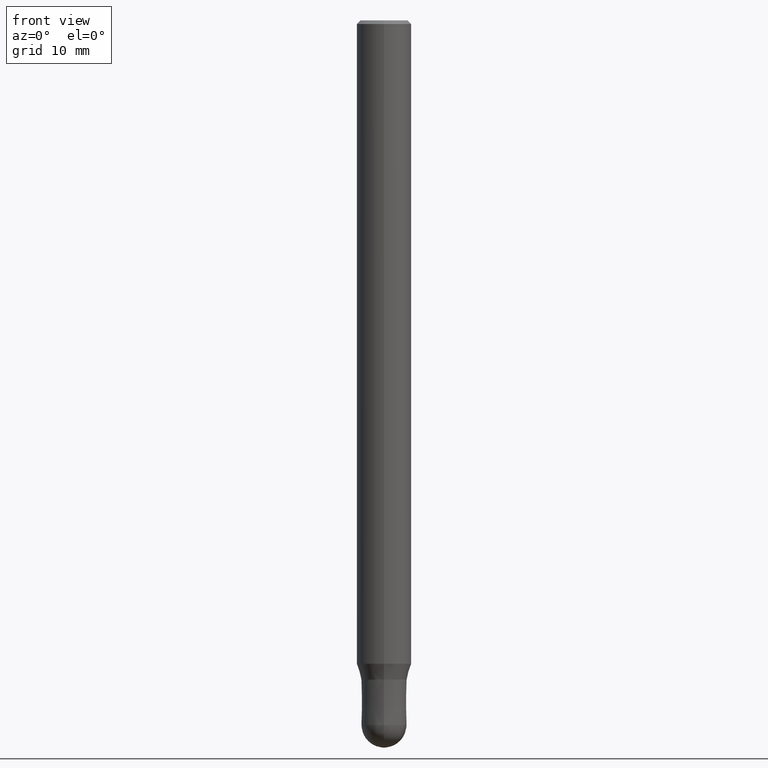
[diagram: clean part render]
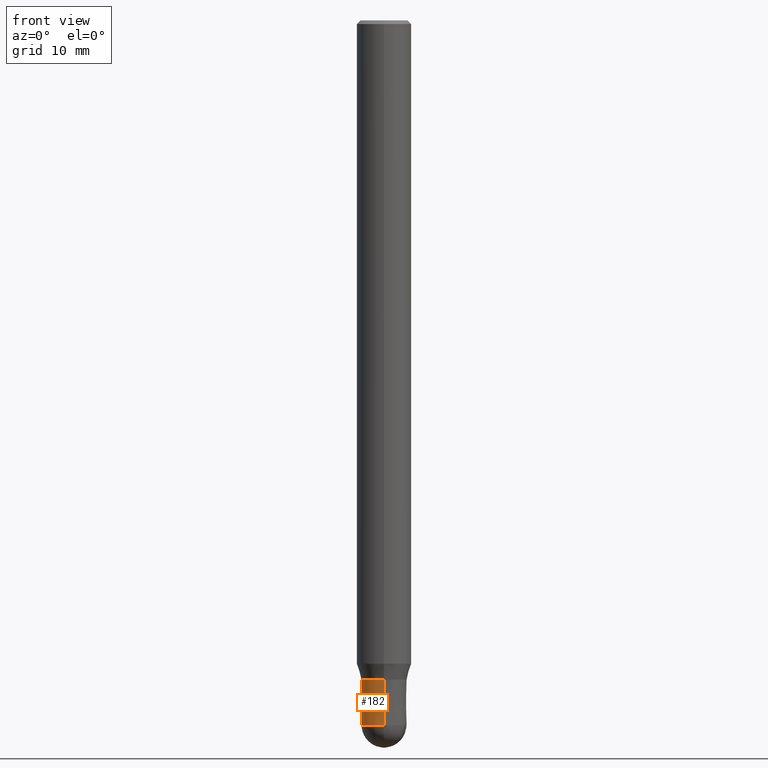
[diagram: same view with one face highlighted and labeled with its STEP entity id]
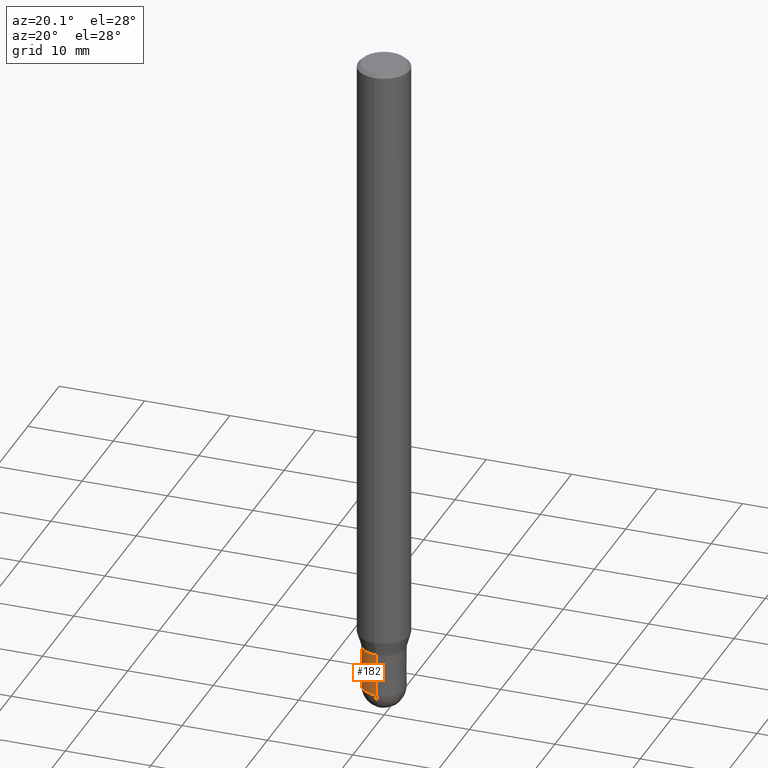
[diagram: same view with one face highlighted and labeled with its STEP entity id]
A machine part, front view. The second image highlights one B-rep face of the part: STEP entity #182.
A second angle (auxiliary view) of the same face is appended — the face is thin or edge-on in the first view.
In plain terms, the highlighted conical surface has half-angle 0.001 deg.
Its self-contained STEP definition (entity closure, byte-faithful):
#92=VERTEX_POINT('',#218);
#102=VERTEX_POINT('',#230);
#120=EDGE_CURVE('',#92,#154,#251,.T.);
#154=VERTEX_POINT('',#290);
#164=EDGE_CURVE('',#92,#180,#302,.T.);
#170=EDGE_CURVE('',#180,#102,#308,.T.);
#180=VERTEX_POINT('',#319);
#182=ADVANCED_FACE('',(#321),#322,.T.);
#184=EDGE_CURVE('',#102,#154,#324,.T.);
#218=CARTESIAN_POINT('',(3.06151588455594E-016,-2.5,-77.5));
#230=CARTESIAN_POINT('',(0.0,2.4999,-72.5));
#251=CIRCLE('',#394,2.5);
#290=CARTESIAN_POINT('',(0.0,2.5,-77.5));
#302=LINE('',#456,#457);
#308=CIRCLE('',#463,2.4999);
#319=CARTESIAN_POINT('',(3.06139342392056E-016,-2.4999,-72.5));
#321=FACE_OUTER_BOUND('',#479,.T.);
#322=CONICAL_SURFACE('',#480,2.49995,1.99999999974644E-005);
#324=LINE('',#483,#484);
#394=AXIS2_PLACEMENT_3D('',#555,#556,#557);
#456=CARTESIAN_POINT('',(3.06145465423825E-016,-2.49995,-75.0));
#457=VECTOR('',#621,1.0);
#463=AXIS2_PLACEMENT_3D('',#623,#624,#625);
#479=EDGE_LOOP('',(#639,#640,#641,#642));
#480=AXIS2_PLACEMENT_3D('',#643,#644,#645);
#483=CARTESIAN_POINT('',(-3.06145465423825E-016,2.49995,-75.0));
#484=VECTOR('',#646,1.0);
#555=CARTESIAN_POINT('',(0.0,0.0,-77.5));
#556=DIRECTION('',(0.0,0.0,-1.0));
#557=DIRECTION('',(0.0,1.0,0.0));
#621=DIRECTION('',(-2.44921270717096E-021,1.9999999996131E-005,0.9999999998));
#623=CARTESIAN_POINT('',(0.0,0.0,-72.5));
#624=DIRECTION('',(0.0,0.0,-1.0));
#625=DIRECTION('',(0.0,1.0,0.0));
#639=ORIENTED_EDGE('',*,*,#184,.T.);
#640=ORIENTED_EDGE('',*,*,#120,.F.);
#641=ORIENTED_EDGE('',*,*,#164,.T.);
#642=ORIENTED_EDGE('',*,*,#170,.T.);
#643=CARTESIAN_POINT('',(0.0,0.0,-75.0));
#644=DIRECTION('',(0.0,-0.0,-1.0));
#645=DIRECTION('',(0.0,1.0,0.0));
#646=DIRECTION('',(-2.44921270717096E-021,1.9999999996131E-005,-0.9999999998));